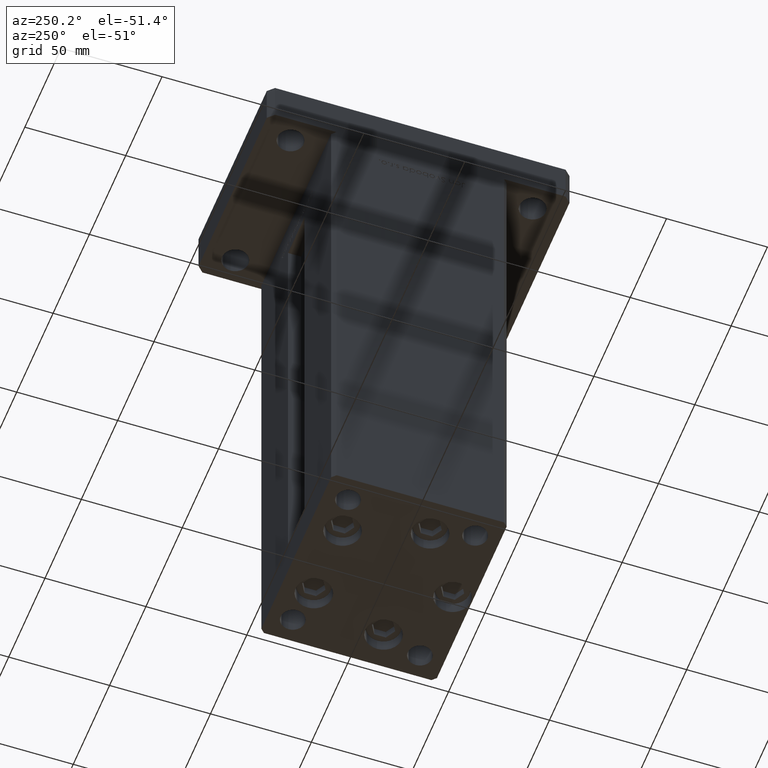
[diagram: clean part render]
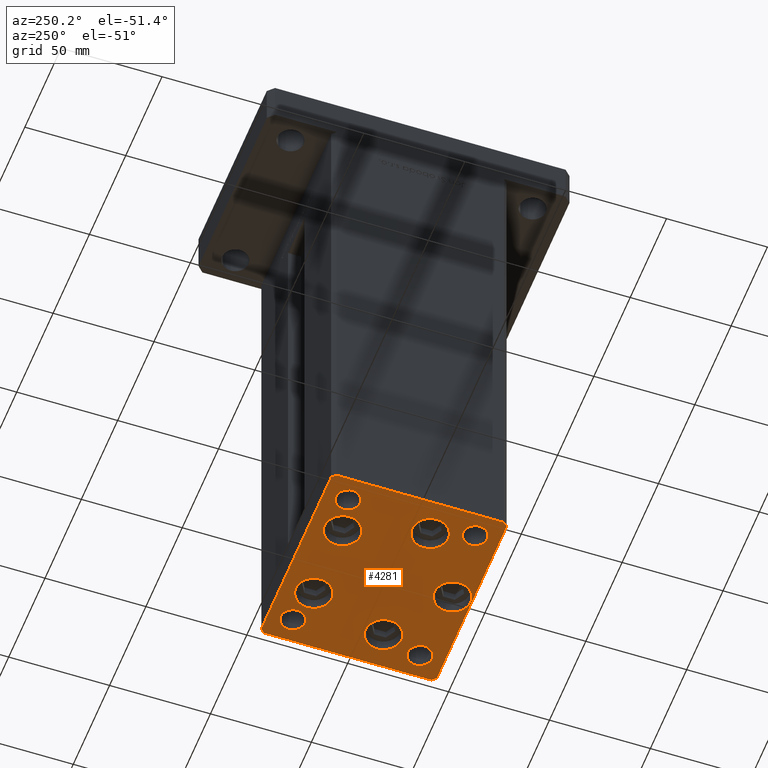
[diagram: same view with one face highlighted and labeled with its STEP entity id]
A machine part, auxiliary view. The second image highlights one B-rep face of the part: STEP entity #4281.
In plain terms, the highlighted planar face has unit normal (0, 0, -1).
Its self-contained STEP definition (entity closure, byte-faithful):
#89 = EDGE_CURVE ( 'NONE', #50808, #18667, #9687, .T. ) ;
#239 = ORIENTED_EDGE ( 'NONE', *, *, #35443, .T. ) ;
#649 = DIRECTION ( 'NONE',  ( 0.000000000000000000, -0.000000000000000000, -1.000000000000000000 ) ) ;
#1286 = AXIS2_PLACEMENT_3D ( 'NONE', #28874, #44974, #7610 ) ;
#1366 = AXIS2_PLACEMENT_3D ( 'NONE', #15564, #52646, #2222 ) ;
#1398 = CIRCLE ( 'NONE', #1366, 6.000000000000005329 ) ;
#1447 = EDGE_CURVE ( 'NONE', #20502, #45449, #15132, .T. ) ;
#1644 = EDGE_CURVE ( 'NONE', #52173, #44475, #25914, .T. ) ;
#1753 = CARTESIAN_POINT ( 'NONE',  ( -32.05550741379015278, -11.33333333333333925, 0.000000000000000000 ) ) ;
#1913 = CARTESIAN_POINT ( 'NONE',  ( -44.00000000000000000, -31.50000000000000000, 0.000000000000000000 ) ) ;
#2093 = CARTESIAN_POINT ( 'NONE',  ( 32.05550741379015278, -11.33333333333333037, 0.000000000000000000 ) ) ;
#2198 = DIRECTION ( 'NONE',  ( 0.000000000000000000, -0.000000000000000000, -1.000000000000000000 ) ) ;
#2222 = DIRECTION ( 'NONE',  ( 1.000000000000000000, 0.000000000000000000, 0.000000000000000000 ) ) ;
#2607 = CARTESIAN_POINT ( 'NONE',  ( -48.00000000000000711, 43.49999999999996447, 0.000000000000000000 ) ) ;
#2741 = DIRECTION ( 'NONE',  ( 1.000000000000000000, 0.000000000000000000, 0.000000000000000000 ) ) ;
#2881 = DIRECTION ( 'NONE',  ( 1.000000000000000000, 0.000000000000000000, 0.000000000000000000 ) ) ;
#2913 = CARTESIAN_POINT ( 'NONE',  ( 23.05550741379014923, -11.33333333333333037, 0.000000000000000000 ) ) ;
#3318 = VERTEX_POINT ( 'NONE', #22775 ) ;
#3378 = VERTEX_POINT ( 'NONE', #35859 ) ;
#3538 = DIRECTION ( 'NONE',  ( 0.000000000000000000, -0.000000000000000000, -1.000000000000000000 ) ) ;
#3616 = CIRCLE ( 'NONE', #34123, 6.000000000000005329 ) ;
#3668 = EDGE_CURVE ( 'NONE', #18499, #3747, #24773, .T. ) ;
#3747 = VERTEX_POINT ( 'NONE', #53157 ) ;
#3805 = DIRECTION ( 'NONE',  ( 1.000000000000000000, 0.000000000000000000, 0.000000000000000000 ) ) ;
#3922 = FACE_BOUND ( 'NONE', #50910, .T. ) ;
#4237 = VERTEX_POINT ( 'NONE', #10509 ) ;
#4281 = ADVANCED_FACE ( 'NONE', ( #45119, #32566, #7759, #24384, #12108, #52762, #44589, #41304, #15142, #3922 ), #53555, .T. ) ;
#4705 = ORIENTED_EDGE ( 'NONE', *, *, #20923, .T. ) ;
#4952 = LINE ( 'NONE', #51033, #34769 ) ;
#5068 = CIRCLE ( 'NONE', #50360, 5.999999999999998224 ) ;
#5428 = EDGE_LOOP ( 'NONE', ( #14532, #10862 ) ) ;
#5913 = VERTEX_POINT ( 'NONE', #2913 ) ;
#5943 = ORIENTED_EDGE ( 'NONE', *, *, #89, .T. ) ;
#6024 = VECTOR ( 'NONE', #25556, 1000.000000000000000 ) ;
#6212 = EDGE_LOOP ( 'NONE', ( #21425, #26795 ) ) ;
#6355 = CARTESIAN_POINT ( 'NONE',  ( -47.99999999999999289, -43.50000000000001421, 0.000000000000000000 ) ) ;
#6656 = EDGE_CURVE ( 'NONE', #4237, #26542, #1398, .T. ) ;
#6745 = ORIENTED_EDGE ( 'NONE', *, *, #48420, .T. ) ;
#7477 = ORIENTED_EDGE ( 'NONE', *, *, #31968, .T. ) ;
#7610 = DIRECTION ( 'NONE',  ( 1.000000000000000000, 0.000000000000000000, 0.000000000000000000 ) ) ;
#7759 = FACE_BOUND ( 'NONE', #5428, .T. ) ;
#7925 = CIRCLE ( 'NONE', #16641, 9.000000000000001776 ) ;
#8551 = CARTESIAN_POINT ( 'NONE',  ( 38.00000000000000000, -31.49999999999999289, 0.000000000000000000 ) ) ;
#8923 = CARTESIAN_POINT ( 'NONE',  ( -48.00000000000000711, 43.49999999999996447, 0.000000000000000000 ) ) ;
#9687 = LINE ( 'NONE', #50600, #28164 ) ;
#10461 = DIRECTION ( 'NONE',  ( 0.000000000000000000, -0.000000000000000000, -1.000000000000000000 ) ) ;
#10509 = CARTESIAN_POINT ( 'NONE',  ( -31.99999999999998579, -31.50000000000000000, 0.000000000000000000 ) ) ;
#10636 = DIRECTION ( 'NONE',  ( 1.000000000000000000, 0.000000000000000000, 0.000000000000000000 ) ) ;
#10783 = EDGE_LOOP ( 'NONE', ( #6745, #239 ) ) ;
#10862 = ORIENTED_EDGE ( 'NONE', *, *, #51997, .T. ) ;
#10903 = LINE ( 'NONE', #39315, #49689 ) ;
#10936 = DIRECTION ( 'NONE',  ( -0.000000000000000000, 0.000000000000000000, 1.000000000000000000 ) ) ;
#11036 = DIRECTION ( 'NONE',  ( 1.000000000000000000, 0.000000000000000000, 0.000000000000000000 ) ) ;
#11307 = DIRECTION ( 'NONE',  ( -0.000000000000000000, 0.000000000000000000, 1.000000000000000000 ) ) ;
#11574 = EDGE_LOOP ( 'NONE', ( #47713, #12726, #25286, #36026, #49569, #7477, #4705, #5943 ) ) ;
#11798 = CARTESIAN_POINT ( 'NONE',  ( 49.99999999999992184, 41.49999999999998579, 0.000000000000000000 ) ) ;
#12000 = AXIS2_PLACEMENT_3D ( 'NONE', #40763, #20007, #20531 ) ;
#12108 = FACE_BOUND ( 'NONE', #51778, .T. ) ;
#12209 = CARTESIAN_POINT ( 'NONE',  ( 4.163799117101000559E-15, -34.00000000000000000, 0.000000000000000000 ) ) ;
#12565 = EDGE_CURVE ( 'NONE', #45449, #20502, #51946, .T. ) ;
#12726 = ORIENTED_EDGE ( 'NONE', *, *, #45965, .T. ) ;
#12809 = EDGE_LOOP ( 'NONE', ( #34392, #28942 ) ) ;
#12864 = ORIENTED_EDGE ( 'NONE', *, *, #6656, .T. ) ;
#13177 = CARTESIAN_POINT ( 'NONE',  ( -23.05550741379014923, -11.33333333333333748, 0.000000000000000000 ) ) ;
#13181 = AXIS2_PLACEMENT_3D ( 'NONE', #2093, #14895, #2881 ) ;
#13476 = CARTESIAN_POINT ( 'NONE',  ( -32.05550741379015278, -11.33333333333333925, 0.000000000000000000 ) ) ;
#14532 = ORIENTED_EDGE ( 'NONE', *, *, #51692, .T. ) ;
#14549 = ORIENTED_EDGE ( 'NONE', *, *, #31006, .T. ) ;
#14699 = CARTESIAN_POINT ( 'NONE',  ( -8.999999999999996447, -34.00000000000000000, 0.000000000000000000 ) ) ;
#14849 = CIRCLE ( 'NONE', #15739, 9.000000000000001776 ) ;
#14895 = DIRECTION ( 'NONE',  ( 0.000000000000000000, -0.000000000000000000, -1.000000000000000000 ) ) ;
#15132 = CIRCLE ( 'NONE', #45607, 5.999999999999998224 ) ;
#15142 = FACE_OUTER_BOUND ( 'NONE', #11574, .T. ) ;
#15464 = VERTEX_POINT ( 'NONE', #18549 ) ;
#15564 = CARTESIAN_POINT ( 'NONE',  ( -37.99999999999999289, -31.50000000000000000, 0.000000000000000000 ) ) ;
#15739 = AXIS2_PLACEMENT_3D ( 'NONE', #1753, #10461, #43486 ) ;
#16623 = CARTESIAN_POINT ( 'NONE',  ( 32.05550741379015278, -11.33333333333333037, 0.000000000000000000 ) ) ;
#16641 = AXIS2_PLACEMENT_3D ( 'NONE', #16623, #3538, #3805 ) ;
#17075 = CARTESIAN_POINT ( 'NONE',  ( -38.00000000000000000, 31.50000000000000000, 0.000000000000000000 ) ) ;
#17122 = AXIS2_PLACEMENT_3D ( 'NONE', #12209, #35969, #24488 ) ;
#17477 = VERTEX_POINT ( 'NONE', #36942 ) ;
#17800 = DIRECTION ( 'NONE',  ( 0.7071067811865474617, -0.7071067811865474617, 0.000000000000000000 ) ) ;
#18110 = CARTESIAN_POINT ( 'NONE',  ( 44.00000000000000000, 31.49999999999999289, 0.000000000000000000 ) ) ;
#18288 = ORIENTED_EDGE ( 'NONE', *, *, #1447, .F. ) ;
#18499 = VERTEX_POINT ( 'NONE', #42132 ) ;
#18549 = CARTESIAN_POINT ( 'NONE',  ( 28.82068048781372838, 27.62500000000000000, 0.000000000000000000 ) ) ;
#18555 = DIRECTION ( 'NONE',  ( -1.003213576468515193E-15, 1.000000000000000000, 0.000000000000000000 ) ) ;
#18667 = VERTEX_POINT ( 'NONE', #23253 ) ;
#18804 = VERTEX_POINT ( 'NONE', #21036 ) ;
#19212 = DIRECTION ( 'NONE',  ( 1.000000000000000000, 0.000000000000000000, 0.000000000000000000 ) ) ;
#19242 = CIRCLE ( 'NONE', #13181, 9.000000000000001776 ) ;
#19794 = CIRCLE ( 'NONE', #53774, 5.999999999999998224 ) ;
#20007 = DIRECTION ( 'NONE',  ( -0.000000000000000000, 0.000000000000000000, 1.000000000000000000 ) ) ;
#20157 = CARTESIAN_POINT ( 'NONE',  ( -50.00000000000000711, 41.49999999999995026, 0.000000000000000000 ) ) ;
#20210 = LINE ( 'NONE', #44777, #29416 ) ;
#20502 = VERTEX_POINT ( 'NONE', #18110 ) ;
#20531 = DIRECTION ( 'NONE',  ( 1.000000000000000000, 0.000000000000000000, 0.000000000000000000 ) ) ;
#20923 = EDGE_CURVE ( 'NONE', #45619, #50808, #22009, .T. ) ;
#21036 = CARTESIAN_POINT ( 'NONE',  ( 9.000000000000003553, -34.00000000000000000, 0.000000000000000000 ) ) ;
#21333 = VERTEX_POINT ( 'NONE', #11798 ) ;
#21425 = ORIENTED_EDGE ( 'NONE', *, *, #22363, .T. ) ;
#21536 = CARTESIAN_POINT ( 'NONE',  ( 47.99999999999999289, -43.50000000000001421, 0.000000000000000000 ) ) ;
#21630 = EDGE_CURVE ( 'NONE', #15464, #17477, #21734, .T. ) ;
#21734 = CIRCLE ( 'NONE', #23480, 8.999999999999998224 ) ;
#22009 = LINE ( 'NONE', #8923, #6024 ) ;
#22363 = EDGE_CURVE ( 'NONE', #36368, #23979, #40899, .T. ) ;
#22492 = CARTESIAN_POINT ( 'NONE',  ( 38.00000000000000000, 31.49999999999999289, 0.000000000000000000 ) ) ;
#22604 = CIRCLE ( 'NONE', #44414, 9.000000000000000000 ) ;
#22775 = CARTESIAN_POINT ( 'NONE',  ( 41.05550741379015278, -11.33333333333332860, 0.000000000000000000 ) ) ;
#23253 = CARTESIAN_POINT ( 'NONE',  ( -50.00000000000000000, -41.50000000000000000, 0.000000000000000000 ) ) ;
#23455 = CARTESIAN_POINT ( 'NONE',  ( -19.82068048781373903, 27.62499999999999645, 0.000000000000000000 ) ) ;
#23480 = AXIS2_PLACEMENT_3D ( 'NONE', #24553, #33827, #33012 ) ;
#23550 = CIRCLE ( 'NONE', #43709, 5.999999999999998224 ) ;
#23979 = VERTEX_POINT ( 'NONE', #42413 ) ;
#24154 = EDGE_CURVE ( 'NONE', #43320, #43895, #14849, .T. ) ;
#24175 = ORIENTED_EDGE ( 'NONE', *, *, #28214, .F. ) ;
#24384 = FACE_BOUND ( 'NONE', #10783, .T. ) ;
#24488 = DIRECTION ( 'NONE',  ( 1.000000000000000000, 0.000000000000000000, 0.000000000000000000 ) ) ;
#24553 = CARTESIAN_POINT ( 'NONE',  ( 19.82068048781373193, 27.62500000000000000, 0.000000000000000000 ) ) ;
#24773 = CIRCLE ( 'NONE', #1286, 5.999999999999998224 ) ;
#24857 = VECTOR ( 'NONE', #29509, 1000.000000000000000 ) ;
#25257 = ORIENTED_EDGE ( 'NONE', *, *, #24154, .T. ) ;
#25286 = ORIENTED_EDGE ( 'NONE', *, *, #1644, .T. ) ;
#25556 = DIRECTION ( 'NONE',  ( -0.7071067811865463515, -0.7071067811865487940, 0.000000000000000000 ) ) ;
#25724 = AXIS2_PLACEMENT_3D ( 'NONE', #13476, #42679, #30653 ) ;
#25914 = LINE ( 'NONE', #21536, #29098 ) ;
#25997 = VECTOR ( 'NONE', #17800, 1000.000000000000114 ) ;
#26109 = AXIS2_PLACEMENT_3D ( 'NONE', #23455, #40116, #2741 ) ;
#26115 = DIRECTION ( 'NONE',  ( 0.000000000000000000, -0.000000000000000000, -1.000000000000000000 ) ) ;
#26542 = VERTEX_POINT ( 'NONE', #1913 ) ;
#26675 = ORIENTED_EDGE ( 'NONE', *, *, #28285, .T. ) ;
#26795 = ORIENTED_EDGE ( 'NONE', *, *, #31675, .T. ) ;
#27342 = VERTEX_POINT ( 'NONE', #35987 ) ;
#28164 = VECTOR ( 'NONE', #33975, 1000.000000000000000 ) ;
#28214 = EDGE_CURVE ( 'NONE', #3378, #27342, #23550, .T. ) ;
#28285 = EDGE_CURVE ( 'NONE', #26542, #4237, #3616, .T. ) ;
#28673 = DIRECTION ( 'NONE',  ( -0.7071067811865474617, 0.7071067811865474617, 0.000000000000000000 ) ) ;
#28874 = CARTESIAN_POINT ( 'NONE',  ( 38.00000000000000000, -31.49999999999999289, 0.000000000000000000 ) ) ;
#28942 = ORIENTED_EDGE ( 'NONE', *, *, #3668, .T. ) ;
#29098 = VECTOR ( 'NONE', #42023, 1000.000000000000000 ) ;
#29416 = VECTOR ( 'NONE', #28673, 1000.000000000000114 ) ;
#29509 = DIRECTION ( 'NONE',  ( -1.000000000000000000, -3.614007241618350743E-16, 0.000000000000000000 ) ) ;
#30538 = ORIENTED_EDGE ( 'NONE', *, *, #21630, .T. ) ;
#30653 = DIRECTION ( 'NONE',  ( 1.000000000000000000, 0.000000000000000000, 0.000000000000000000 ) ) ;
#30660 = DIRECTION ( 'NONE',  ( 0.000000000000000000, -0.000000000000000000, -1.000000000000000000 ) ) ;
#31006 = EDGE_CURVE ( 'NONE', #43895, #43320, #32689, .T. ) ;
#31236 = DIRECTION ( 'NONE',  ( 0.000000000000000000, -0.000000000000000000, -1.000000000000000000 ) ) ;
#31675 = EDGE_CURVE ( 'NONE', #23979, #36368, #37923, .T. ) ;
#31968 = EDGE_CURVE ( 'NONE', #39776, #45619, #53508, .T. ) ;
#32110 = CARTESIAN_POINT ( 'NONE',  ( 32.00000000000000000, 31.49999999999999289, 0.000000000000000000 ) ) ;
#32566 = FACE_BOUND ( 'NONE', #53312, .T. ) ;
#32689 = CIRCLE ( 'NONE', #25724, 9.000000000000001776 ) ;
#33012 = DIRECTION ( 'NONE',  ( 1.000000000000000000, 0.000000000000000000, 0.000000000000000000 ) ) ;
#33245 = VERTEX_POINT ( 'NONE', #14699 ) ;
#33538 = AXIS2_PLACEMENT_3D ( 'NONE', #53297, #11307, #11036 ) ;
#33827 = DIRECTION ( 'NONE',  ( 0.000000000000000000, -0.000000000000000000, -1.000000000000000000 ) ) ;
#33975 = DIRECTION ( 'NONE',  ( 8.360113137237628665E-17, -1.000000000000000000, 0.000000000000000000 ) ) ;
#34123 = AXIS2_PLACEMENT_3D ( 'NONE', #39449, #31236, #19212 ) ;
#34392 = ORIENTED_EDGE ( 'NONE', *, *, #42333, .T. ) ;
#34762 = DIRECTION ( 'NONE',  ( 1.000000000000000000, 0.000000000000000000, 0.000000000000000000 ) ) ;
#34769 = VECTOR ( 'NONE', #34949, 1000.000000000000000 ) ;
#34949 = DIRECTION ( 'NONE',  ( 1.000000000000000000, 0.000000000000000000, 0.000000000000000000 ) ) ;
#35346 = DIRECTION ( 'NONE',  ( -0.000000000000000000, 0.000000000000000000, 1.000000000000000000 ) ) ;
#35443 = EDGE_CURVE ( 'NONE', #18804, #33245, #48501, .T. ) ;
#35859 = CARTESIAN_POINT ( 'NONE',  ( -44.00000000000000000, 31.50000000000000000, 0.000000000000000000 ) ) ;
#35970 = EDGE_CURVE ( 'NONE', #17477, #15464, #51150, .T. ) ;
#35969 = DIRECTION ( 'NONE',  ( 0.000000000000000000, -0.000000000000000000, -1.000000000000000000 ) ) ;
#35987 = CARTESIAN_POINT ( 'NONE',  ( -32.00000000000000000, 31.50000000000000000, 0.000000000000000000 ) ) ;
#36014 = CARTESIAN_POINT ( 'NONE',  ( 47.99999999999990763, 43.50000000000000000, 0.000000000000000000 ) ) ;
#36026 = ORIENTED_EDGE ( 'NONE', *, *, #50688, .T. ) ;
#36368 = VERTEX_POINT ( 'NONE', #40469 ) ;
#36682 = CARTESIAN_POINT ( 'NONE',  ( -41.05550741379015278, -11.33333333333333925, 0.000000000000000000 ) ) ;
#36942 = CARTESIAN_POINT ( 'NONE',  ( 10.82068048781373193, 27.62500000000000000, 0.000000000000000000 ) ) ;
#37578 = DIRECTION ( 'NONE',  ( 1.000000000000000000, 0.000000000000000000, 0.000000000000000000 ) ) ;
#37774 = CARTESIAN_POINT ( 'NONE',  ( 47.99999999999999289, -43.50000000000001421, 0.000000000000000000 ) ) ;
#37923 = CIRCLE ( 'NONE', #43156, 9.000000000000000000 ) ;
#37978 = CARTESIAN_POINT ( 'NONE',  ( 47.99999999999990763, 43.50000000000000000, 0.000000000000000000 ) ) ;
#38467 = VERTEX_POINT ( 'NONE', #6355 ) ;
#39155 = DIRECTION ( 'NONE',  ( 1.000000000000000000, 0.000000000000000000, 0.000000000000000000 ) ) ;
#39188 = DIRECTION ( 'NONE',  ( 1.000000000000000000, 0.000000000000000000, 0.000000000000000000 ) ) ;
#39221 = EDGE_CURVE ( 'NONE', #27342, #3378, #5068, .T. ) ;
#39315 = CARTESIAN_POINT ( 'NONE',  ( 50.00000000000000000, -41.49999999999999289, 0.000000000000000000 ) ) ;
#39449 = CARTESIAN_POINT ( 'NONE',  ( -37.99999999999999289, -31.50000000000000000, 0.000000000000000000 ) ) ;
#39776 = VERTEX_POINT ( 'NONE', #36014 ) ;
#40028 = EDGE_LOOP ( 'NONE', ( #18288, #53290 ) ) ;
#40116 = DIRECTION ( 'NONE',  ( 0.000000000000000000, -0.000000000000000000, -1.000000000000000000 ) ) ;
#40469 = CARTESIAN_POINT ( 'NONE',  ( -28.82068048781373548, 27.62499999999999645, 0.000000000000000000 ) ) ;
#40763 = CARTESIAN_POINT ( 'NONE',  ( 38.00000000000000000, 31.49999999999999289, 0.000000000000000000 ) ) ;
#40899 = CIRCLE ( 'NONE', #26109, 9.000000000000000000 ) ;
#41304 = FACE_BOUND ( 'NONE', #41338, .T. ) ;
#41338 = EDGE_LOOP ( 'NONE', ( #44922, #24175 ) ) ;
#41841 = DIRECTION ( 'NONE',  ( 1.000000000000000000, 0.000000000000000000, 0.000000000000000000 ) ) ;
#42023 = DIRECTION ( 'NONE',  ( 0.7071067811865463515, 0.7071067811865487940, 0.000000000000000000 ) ) ;
#42132 = CARTESIAN_POINT ( 'NONE',  ( 32.00000000000000000, -31.49999999999999289, 0.000000000000000000 ) ) ;
#42333 = EDGE_CURVE ( 'NONE', #3747, #18499, #19794, .T. ) ;
#42413 = CARTESIAN_POINT ( 'NONE',  ( -10.82068048781373903, 27.62499999999999645, 0.000000000000000000 ) ) ;
#42642 = EDGE_CURVE ( 'NONE', #21333, #39776, #20210, .T. ) ;
#42650 = LINE ( 'NONE', #46452, #25997 ) ;
#42679 = DIRECTION ( 'NONE',  ( 0.000000000000000000, -0.000000000000000000, -1.000000000000000000 ) ) ;
#43156 = AXIS2_PLACEMENT_3D ( 'NONE', #47035, #30660, #34762 ) ;
#43320 = VERTEX_POINT ( 'NONE', #36682 ) ;
#43486 = DIRECTION ( 'NONE',  ( 1.000000000000000000, 0.000000000000000000, 0.000000000000000000 ) ) ;
#43709 = AXIS2_PLACEMENT_3D ( 'NONE', #17075, #47080, #50343 ) ;
#43891 = EDGE_CURVE ( 'NONE', #18667, #38467, #42650, .T. ) ;
#43895 = VERTEX_POINT ( 'NONE', #13177 ) ;
#44414 = AXIS2_PLACEMENT_3D ( 'NONE', #52620, #2198, #10636 ) ;
#44475 = VERTEX_POINT ( 'NONE', #47669 ) ;
#44589 = FACE_BOUND ( 'NONE', #12809, .T. ) ;
#44777 = CARTESIAN_POINT ( 'NONE',  ( 49.99999999999992184, 41.49999999999998579, 0.000000000000000000 ) ) ;
#44922 = ORIENTED_EDGE ( 'NONE', *, *, #39221, .F. ) ;
#44974 = DIRECTION ( 'NONE',  ( 0.000000000000000000, -0.000000000000000000, -1.000000000000000000 ) ) ;
#45119 = FACE_BOUND ( 'NONE', #6212, .T. ) ;
#45449 = VERTEX_POINT ( 'NONE', #32110 ) ;
#45607 = AXIS2_PLACEMENT_3D ( 'NONE', #22492, #10936, #39155 ) ;
#45619 = VERTEX_POINT ( 'NONE', #2607 ) ;
#45965 = EDGE_CURVE ( 'NONE', #38467, #52173, #4952, .T. ) ;
#46452 = CARTESIAN_POINT ( 'NONE',  ( -50.00000000000000000, -41.50000000000000000, 0.000000000000000000 ) ) ;
#47035 = CARTESIAN_POINT ( 'NONE',  ( -19.82068048781373903, 27.62499999999999645, 0.000000000000000000 ) ) ;
#47080 = DIRECTION ( 'NONE',  ( -0.000000000000000000, 0.000000000000000000, 1.000000000000000000 ) ) ;
#47669 = CARTESIAN_POINT ( 'NONE',  ( 50.00000000000000000, -41.49999999999999289, 0.000000000000000000 ) ) ;
#47713 = ORIENTED_EDGE ( 'NONE', *, *, #43891, .T. ) ;
#48420 = EDGE_CURVE ( 'NONE', #33245, #18804, #22604, .T. ) ;
#48501 = CIRCLE ( 'NONE', #17122, 9.000000000000000000 ) ;
#49569 = ORIENTED_EDGE ( 'NONE', *, *, #42642, .T. ) ;
#49689 = VECTOR ( 'NONE', #18555, 1000.000000000000000 ) ;
#50343 = DIRECTION ( 'NONE',  ( 1.000000000000000000, 0.000000000000000000, 0.000000000000000000 ) ) ;
#50360 = AXIS2_PLACEMENT_3D ( 'NONE', #51710, #35346, #39188 ) ;
#50378 = CARTESIAN_POINT ( 'NONE',  ( 19.82068048781373193, 27.62500000000000000, 0.000000000000000000 ) ) ;
#50600 = CARTESIAN_POINT ( 'NONE',  ( -50.00000000000000711, 41.49999999999995026, 0.000000000000000000 ) ) ;
#50688 = EDGE_CURVE ( 'NONE', #44475, #21333, #10903, .T. ) ;
#50808 = VERTEX_POINT ( 'NONE', #20157 ) ;
#50910 = EDGE_LOOP ( 'NONE', ( #12864, #26675 ) ) ;
#51033 = CARTESIAN_POINT ( 'NONE',  ( -47.99999999999999289, -43.50000000000001421, 0.000000000000000000 ) ) ;
#51150 = CIRCLE ( 'NONE', #52009, 8.999999999999998224 ) ;
#51552 = ORIENTED_EDGE ( 'NONE', *, *, #35970, .T. ) ;
#51692 = EDGE_CURVE ( 'NONE', #5913, #3318, #7925, .T. ) ;
#51710 = CARTESIAN_POINT ( 'NONE',  ( -38.00000000000000000, 31.50000000000000000, 0.000000000000000000 ) ) ;
#51778 = EDGE_LOOP ( 'NONE', ( #25257, #14549 ) ) ;
#51946 = CIRCLE ( 'NONE', #12000, 5.999999999999998224 ) ;
#51997 = EDGE_CURVE ( 'NONE', #3318, #5913, #19242, .T. ) ;
#52009 = AXIS2_PLACEMENT_3D ( 'NONE', #50378, #26115, #37578 ) ;
#52173 = VERTEX_POINT ( 'NONE', #37774 ) ;
#52620 = CARTESIAN_POINT ( 'NONE',  ( 4.163799117101000559E-15, -34.00000000000000000, 0.000000000000000000 ) ) ;
#52646 = DIRECTION ( 'NONE',  ( 0.000000000000000000, -0.000000000000000000, -1.000000000000000000 ) ) ;
#52762 = FACE_BOUND ( 'NONE', #40028, .T. ) ;
#53157 = CARTESIAN_POINT ( 'NONE',  ( 44.00000000000000000, -31.49999999999999289, 0.000000000000000000 ) ) ;
#53290 = ORIENTED_EDGE ( 'NONE', *, *, #12565, .F. ) ;
#53297 = CARTESIAN_POINT ( 'NONE',  ( 0.000000000000000000, 0.000000000000000000, 0.000000000000000000 ) ) ;
#53312 = EDGE_LOOP ( 'NONE', ( #51552, #30538 ) ) ;
#53508 = LINE ( 'NONE', #37978, #24857 ) ;
#53555 = PLANE ( 'NONE',  #33538 ) ;
#53774 = AXIS2_PLACEMENT_3D ( 'NONE', #8551, #649, #41841 ) ;